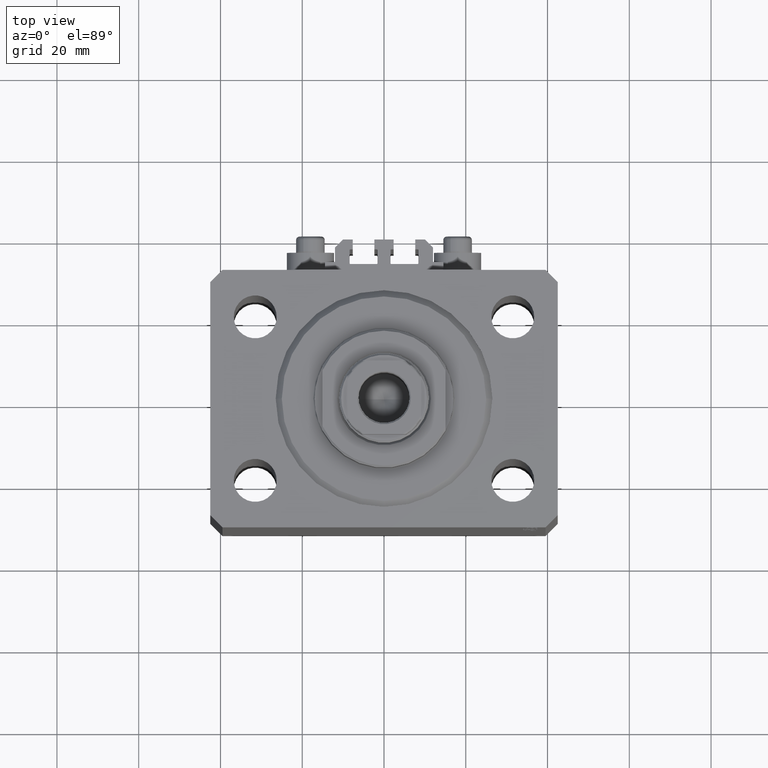
[diagram: clean part render]
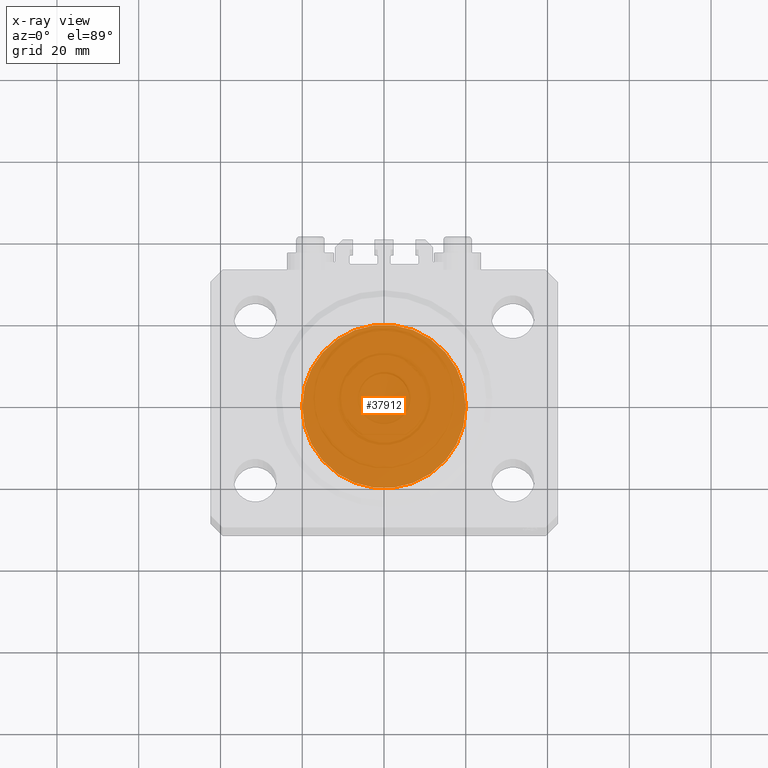
[diagram: x-ray — body ghosted, one internal face saturated and labeled with its STEP entity id]
A machine part, top view, then the same camera in x-ray: the body is ghosted and one INTERNAL B-rep face — a face not visible from any outside direction — is saturated and labeled: STEP entity #37912.
In plain terms, the highlighted planar face has unit normal (0, 0, 1).
Its self-contained STEP definition (entity closure, byte-faithful):
#2056 = CARTESIAN_POINT ( 'NONE',  ( -20.00000000000000000, 0.000000000000000000, 0.000000000000000000 ) ) ;
#2732 = AXIS2_PLACEMENT_3D ( 'NONE', #45031, #15813, #34235 ) ;
#5460 = EDGE_CURVE ( 'NONE', #20726, #47221, #44015, .T. ) ;
#6784 = ORIENTED_EDGE ( 'NONE', *, *, #43050, .F. ) ;
#9696 = CARTESIAN_POINT ( 'NONE',  ( 20.00000000000000000, 2.449293598294706513E-15, 0.000000000000000000 ) ) ;
#10778 = FACE_OUTER_BOUND ( 'NONE', #39878, .T. ) ;
#12711 = CARTESIAN_POINT ( 'NONE',  ( 0.000000000000000000, 0.000000000000000000, 0.000000000000000000 ) ) ;
#15813 = DIRECTION ( 'NONE',  ( 0.000000000000000000, 0.000000000000000000, 1.000000000000000000 ) ) ;
#18191 = DIRECTION ( 'NONE',  ( 1.000000000000000000, 0.000000000000000000, -0.000000000000000000 ) ) ;
#20726 = VERTEX_POINT ( 'NONE', #2056 ) ;
#22710 = AXIS2_PLACEMENT_3D ( 'NONE', #12711, #27313, #30199 ) ;
#24207 = AXIS2_PLACEMENT_3D ( 'NONE', #25367, #39749, #18191 ) ;
#25367 = CARTESIAN_POINT ( 'NONE',  ( 0.000000000000000000, 0.000000000000000000, 0.000000000000000000 ) ) ;
#27313 = DIRECTION ( 'NONE',  ( 0.000000000000000000, 0.000000000000000000, 1.000000000000000000 ) ) ;
#30199 = DIRECTION ( 'NONE',  ( 1.000000000000000000, 0.000000000000000000, 0.000000000000000000 ) ) ;
#33612 = ORIENTED_EDGE ( 'NONE', *, *, #5460, .F. ) ;
#34235 = DIRECTION ( 'NONE',  ( 1.000000000000000000, 0.000000000000000000, 0.000000000000000000 ) ) ;
#35911 = PLANE ( 'NONE',  #24207 ) ;
#37912 = ADVANCED_FACE ( 'NONE', ( #10778 ), #35911, .F. ) ;
#39749 = DIRECTION ( 'NONE',  ( 0.000000000000000000, 0.000000000000000000, 1.000000000000000000 ) ) ;
#39878 = EDGE_LOOP ( 'NONE', ( #33612, #6784 ) ) ;
#43050 = EDGE_CURVE ( 'NONE', #47221, #20726, #45664, .T. ) ;
#44015 = CIRCLE ( 'NONE', #2732, 20.00000000000000000 ) ;
#45031 = CARTESIAN_POINT ( 'NONE',  ( 0.000000000000000000, 0.000000000000000000, 0.000000000000000000 ) ) ;
#45664 = CIRCLE ( 'NONE', #22710, 20.00000000000000000 ) ;
#47221 = VERTEX_POINT ( 'NONE', #9696 ) ;